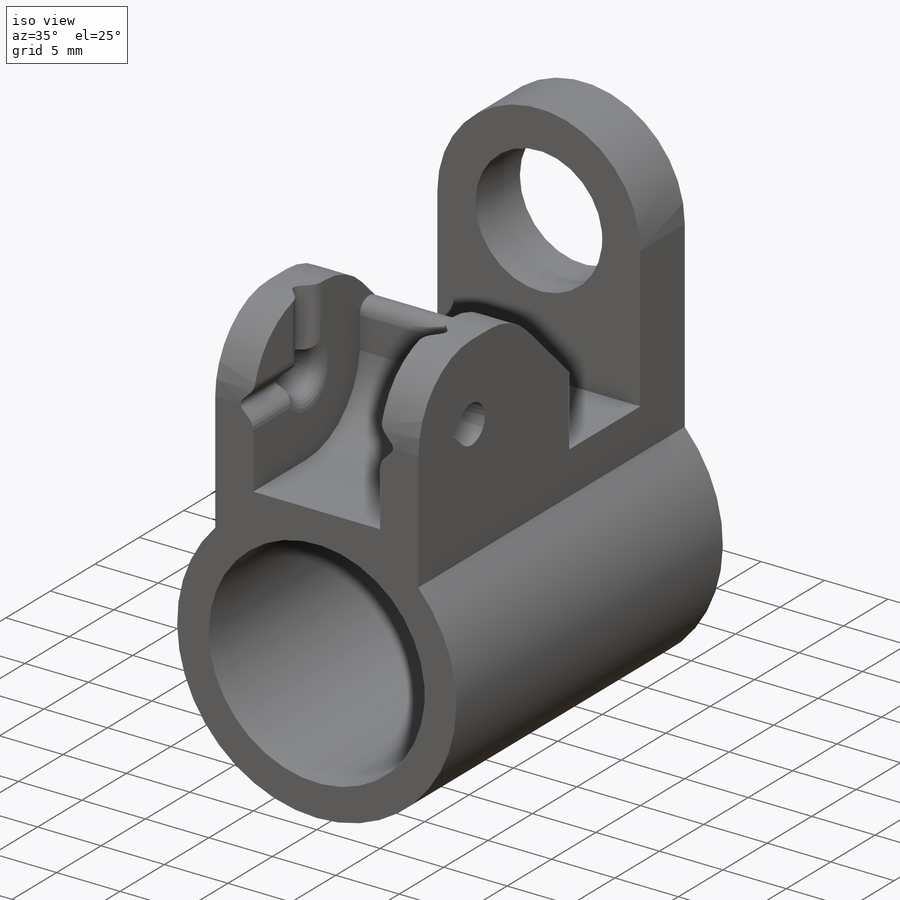
[diagram: iso view]
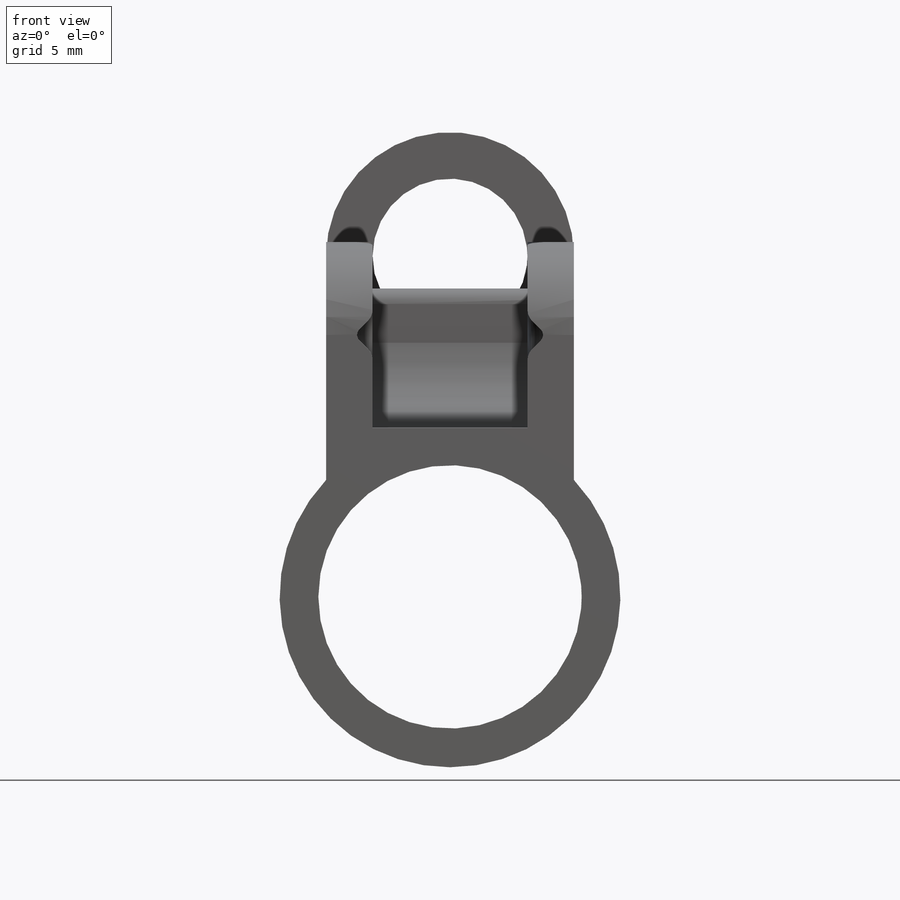
[diagram: front view]
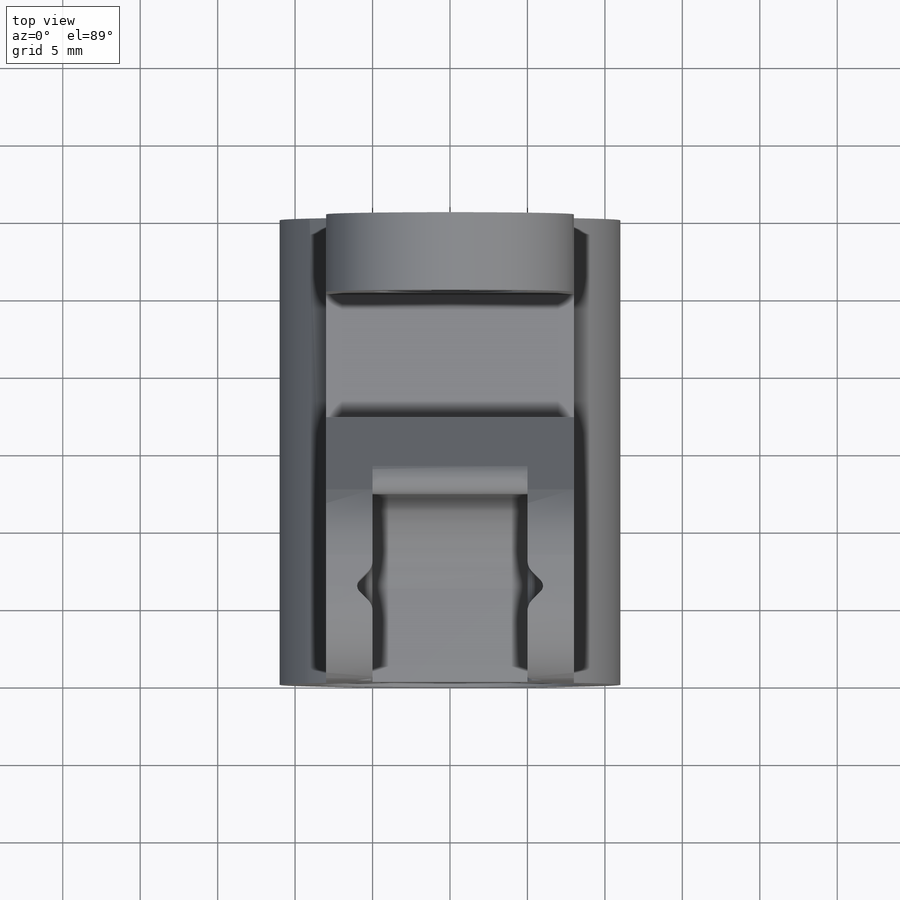
[diagram: top view]
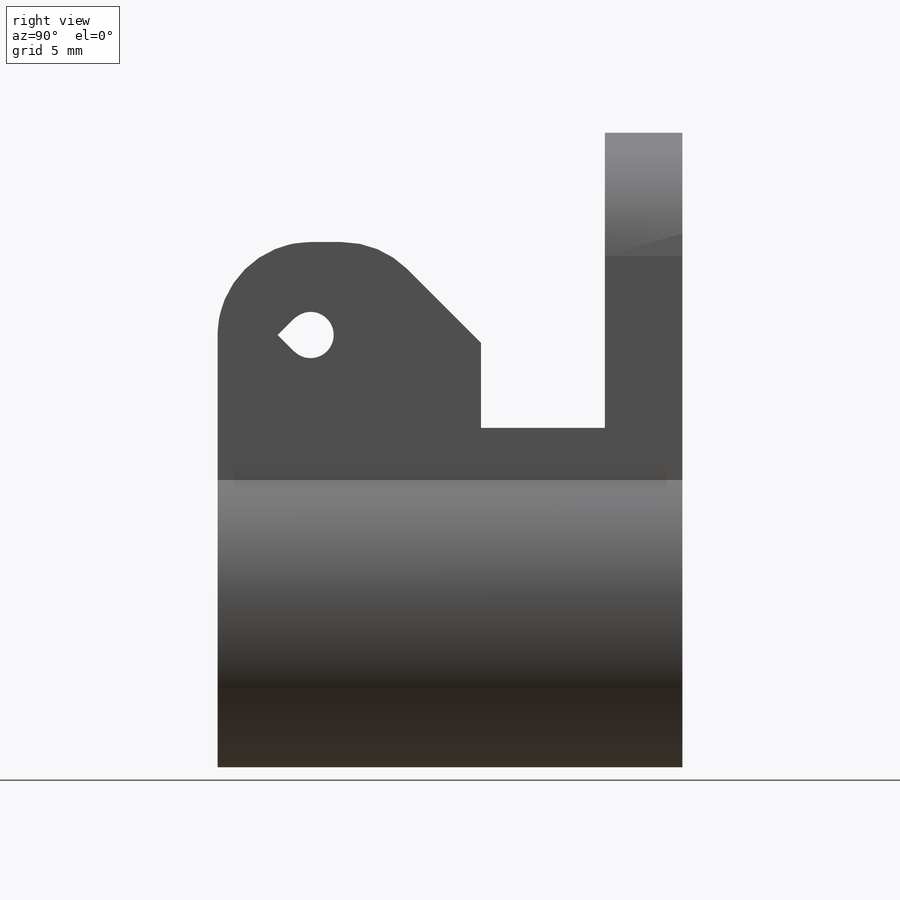
[diagram: right view]
SOLIDWORKS PART (.sldprt)
format: sldprt  version: not decoded by parser v0  size: 430,080 bytes
history: native  units: mm
features: sketch x9, cut_extrude x6, fillet x4, extrude x3, material x1, pattern_circular x1 (+12 scaffold rows collapsed)
feature tree (36):
  scaffold x12  (default folders/planes/origin — collapsed)
  material  "Material <not specified>"
  sketch  "Sketch1"  dims[c1.D2=7.5mm c1.D1=7.5mm c1.D3=11.0mm c1.D4=4.0mm c2.D1=16.0mm c2.D2=22.0mm c3.D1=2.0mm c3.D2=2.0mm c3.D3=2.0mm c4.D1=2.0mm]
  extrude  "Boss-Extrude1"  Depth=30mm
  sketch  "Sketch2"  dims[D1=13.0mm]
  cut_extrude  "Cut-Extrude1"  Depth=25mm
  sketch  "Sketch5"  dims[D1=8.0mm]
  extrude  "Boss-Extrude4"  [1 undecoded]
  fillet  "Fillet3"  Radius=6mm
  sketch  "Sketch7"  dims[D1=5.0mm]
  cut_extrude  "Cut-Extrude2"  [1 undecoded]
  sketch  "Sketch9"  dims[D1=9.0mm]
  cut_extrude  "Cut-Extrude3"  [1 undecoded]
  sketch  "Sketch10"  dims[D1=3.5mm]
  extrude  "Boss-Extrude5"  [1 undecoded]
  fillet  "Fillet4"  Radius=1mm
  sketch  "Sketch11"  dims[D1=~2.585739mm]
  cut_extrude  "Cut-Extrude4"  [1 undecoded]
  sketch  "Sketch12"  dims[D1=2.0mm D2=1.0mm]
  cut_extrude  "Cut-Extrude5"  Depth=5mm
  pattern_circular  "CirPattern1"  Count=2 Angle=90deg
  fillet  "Fillet7"  Radius=1mm
  fillet  "Fillet8"  Radius=1mm
  sketch  "Sketch13"  dims[D1=8.0mm]
  cut_extrude  "Cut-Extrude6"  [1 undecoded]
decode coverage: 17 of 23 modeling features carry decoded parameters
note: ~ marks probable driven/reference dimensions
note: 6 parameter values undecoded
summary: no parameter record found for 6 features
note: suppression state not decoded; provenance and decode notes live in map.json
